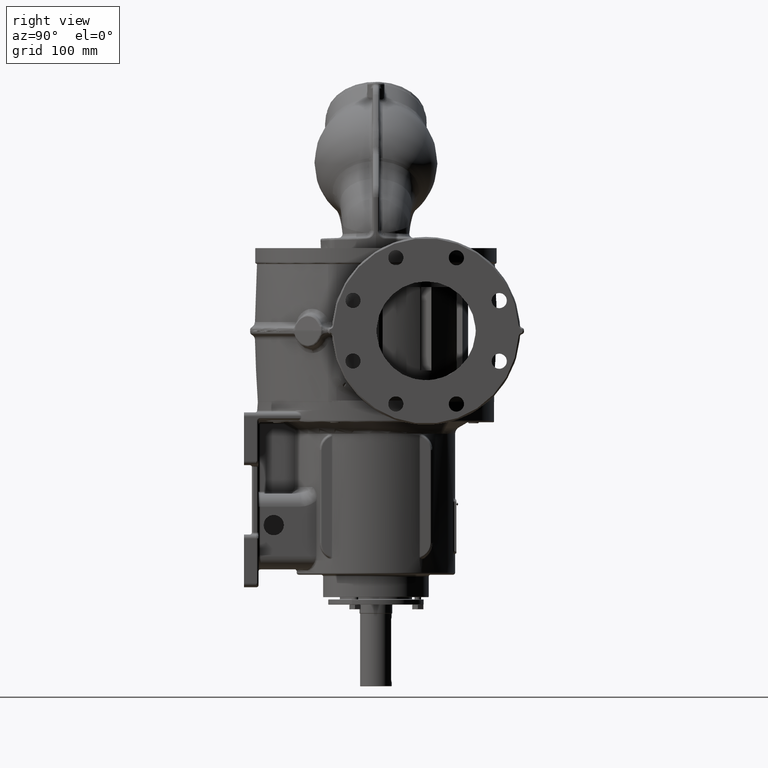
[diagram: clean part render]
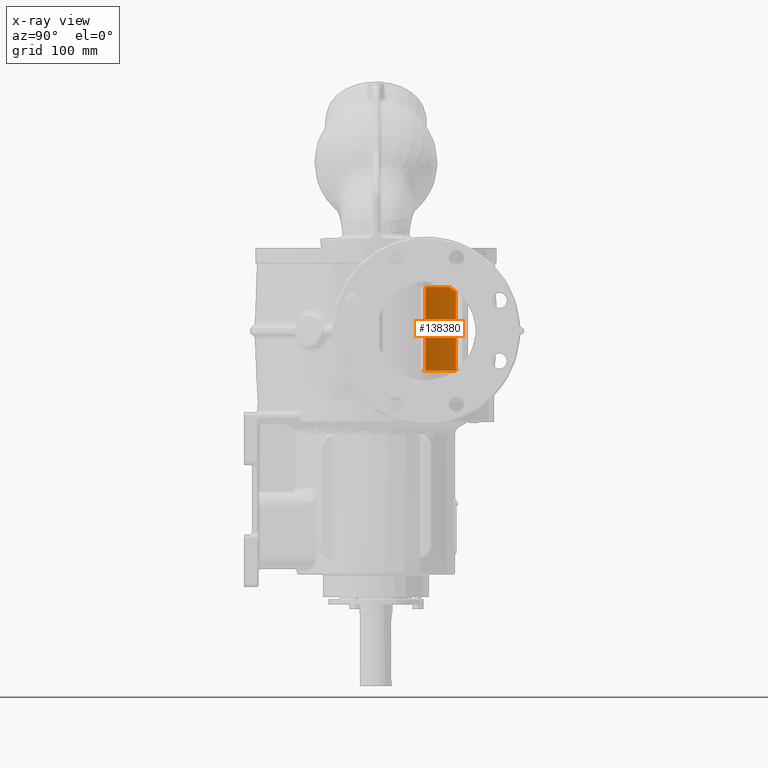
[diagram: x-ray — body ghosted, one internal face saturated and labeled with its STEP entity id]
A machine part, right view, then the same camera in x-ray: the body is ghosted and one INTERNAL B-rep face — a face not visible from any outside direction — is saturated and labeled: STEP entity #138380.
In plain terms, the highlighted cylindrical surface (partial cylindrical patch) has radius 175.5 mm, axis along (0, 0, 1).
Its self-contained STEP definition (entity closure, byte-faithful):
#50394=CARTESIAN_POINT('',(2.341162855619E2,6.974274386931E1,5.75E1));
#50395=DIRECTION('',(0.E0,0.E0,-1.E0));
#50396=DIRECTION('',(-9.997964868474E-1,2.017386645368E-2,0.E0));
#50397=AXIS2_PLACEMENT_3D('',#50394,#50395,#50396);
#50419=CARTESIAN_POINT('',(6.657694933999E1,1.22E2,5.75E1));
#50420=CARTESIAN_POINT('',(6.664135081451E1,1.222064742983E2,5.765485572375E1));
#50421=CARTESIAN_POINT('',(6.677053842808E1,1.226179707481E2,5.796680842306E1));
#50422=CARTESIAN_POINT('',(6.696543771716E1,1.232308838119E2,5.844150461495E1));
#50423=CARTESIAN_POINT('',(6.709606348239E1,1.236365333446E2,5.876244208069E1));
#50424=CARTESIAN_POINT('',(6.716154333828E1,1.238386221692E2,5.892403672756E1));
#50426=CARTESIAN_POINT('',(6.663468786817E1,1.221847540705E2,1.773609889626E2));
#50427=CARTESIAN_POINT('',(6.651843108680E1,1.218134702198E2,1.776412444308E2));
#50428=CARTESIAN_POINT('',(6.628725982487E1,1.210665311974E2,1.781942123703E2));
#50429=CARTESIAN_POINT('',(6.594473421355E1,1.199328936934E2,1.790013085655E2));
#50430=CARTESIAN_POINT('',(6.560686972296E1,1.187866717686E2,1.797857594084E2));
#50431=CARTESIAN_POINT('',(6.527409646697E1,1.176285755199E2,1.805472651210E2));
#50432=CARTESIAN_POINT('',(6.494685770783E1,1.164594398912E2,1.812854882207E2));
#50433=CARTESIAN_POINT('',(6.462540380730E1,1.152794641462E2,1.820005082063E2));
#50434=CARTESIAN_POINT('',(6.431017031425E1,1.140895758805E2,1.826919716175E2));
#50435=CARTESIAN_POINT('',(6.400142331270E1,1.128901396948E2,1.833598840820E2));
#50436=CARTESIAN_POINT('',(6.380018913847E1,1.120848093020E2,1.837892441479E2));
#50437=CARTESIAN_POINT('',(6.370073759935E1,1.116806862677E2,1.84E2));
#50439=CARTESIAN_POINT('',(2.341162855619E2,6.974274386931E1,1.84E2));
#50440=DIRECTION('',(0.E0,0.E0,1.E0));
#50441=DIRECTION('',(-9.710287633196E-1,2.389626347488E-1,0.E0));
#50442=AXIS2_PLACEMENT_3D('',#50439,#50440,#50441);
#50444=DIRECTION('',(0.E0,0.E0,1.E0));
#50445=VECTOR('',#50444,1.26E2);
#50446=CARTESIAN_POINT('',(5.871679786463E1,7.568157502708E1,5.8E1));
#50447=LINE('',#50446,#50445);
#50448=CARTESIAN_POINT('',(2.341162855619E2,6.974274386931E1,5.8E1));
#50449=DIRECTION('',(0.E0,0.E0,1.E0));
#50450=DIRECTION('',(-9.994272803266E-1,3.383949377645E-2,0.E0));
#50451=AXIS2_PLACEMENT_3D('',#50448,#50449,#50450);
#50453=DIRECTION('',(-2.842170943040E-14,-6.536993168993E-13,1.E0));
#50454=VECTOR('',#50453,5.E-1);
#50455=CARTESIAN_POINT('',(5.865200212023E1,7.328325743193E1,5.75E1));
#50456=LINE('',#50455,#50454);
#50457=CARTESIAN_POINT('',(6.716154333828E1,1.238386221692E2,5.892403672756E1));
#50653=DIRECTION('',(-2.467319600968E-14,2.467319600968E-14,-1.E0));
#50654=VECTOR('',#50653,5.759632724364E-1);
#50655=CARTESIAN_POINT('',(6.716154333828E1,1.238386221692E2,5.95E1));
#50656=LINE('',#50655,#50654);
#50915=CARTESIAN_POINT('',(6.663468786817E1,1.221847540705E2,1.773609889626E2));
#50920=DIRECTION('',(0.E0,0.E0,1.E0));
#50921=VECTOR('',#50920,1.178609889626E2);
#50922=CARTESIAN_POINT('',(6.663468786817E1,1.221847540705E2,5.95E1));
#50923=LINE('',#50922,#50921);
#50924=CARTESIAN_POINT('',(2.341162855619E2,6.974274386931E1,5.95E1));
#50925=DIRECTION('',(0.E0,0.E0,1.E0));
#50926=DIRECTION('',(-9.513090724995E-1,3.082386227912E-1,0.E0));
#50927=AXIS2_PLACEMENT_3D('',#50924,#50925,#50926);
#66542=CARTESIAN_POINT('',(5.871679786463E1,7.568157502708E1,1.84E2));
#66544=VERTEX_POINT('',#66542);
#66558=CARTESIAN_POINT('',(5.871679786463E1,7.568157502708E1,5.8E1));
#66560=VERTEX_POINT('',#66558);
#66613=CARTESIAN_POINT('',(5.865200212023E1,7.328325743193E1,5.75E1));
#66615=VERTEX_POINT('',#66613);
#66620=CARTESIAN_POINT('',(6.716154333828E1,1.238386221692E2,5.95E1));
#66621=CARTESIAN_POINT('',(6.663468786817E1,1.221847540705E2,5.95E1));
#66622=VERTEX_POINT('',#66620);
#66623=VERTEX_POINT('',#66621);
#66683=CARTESIAN_POINT('',(5.865200212023E1,7.328325743193E1,5.8E1));
#66685=VERTEX_POINT('',#66683);
#67933=VERTEX_POINT('',#50457);
#67941=CARTESIAN_POINT('',(6.370073759935E1,1.116806862677E2,1.84E2));
#67942=VERTEX_POINT('',#67941);
#67974=VERTEX_POINT('',#50915);
#67983=CARTESIAN_POINT('',(6.657694933999E1,1.22E2,5.75E1));
#67985=VERTEX_POINT('',#67983);
#138357=CARTESIAN_POINT('',(2.341162855619E2,6.974274386931E1,5.75E1));
#138358=DIRECTION('',(0.E0,0.E0,1.E0));
#138359=DIRECTION('',(9.898214418809E-1,-1.423148382733E-1,0.E0));
#138360=AXIS2_PLACEMENT_3D('',#138357,#138358,#138359);
#138361=CYLINDRICAL_SURFACE('',#138360,1.755E2);
#138362=ORIENTED_EDGE('',*,*,#137453,.T.);
#138364=ORIENTED_EDGE('',*,*,#138363,.F.);
#138366=ORIENTED_EDGE('',*,*,#138365,.T.);
#138368=ORIENTED_EDGE('',*,*,#138367,.T.);
#138369=ORIENTED_EDGE('',*,*,#137306,.T.);
#138371=ORIENTED_EDGE('',*,*,#138370,.T.);
#138373=ORIENTED_EDGE('',*,*,#138372,.F.);
#138374=ORIENTED_EDGE('',*,*,#137968,.T.);
#138376=ORIENTED_EDGE('',*,*,#138375,.F.);
#138377=ORIENTED_EDGE('',*,*,#138346,.T.);
#138378=EDGE_LOOP('',(#138362,#138364,#138366,#138368,#138369,#138371,#138373,
#138374,#138376,#138377));
#138379=FACE_OUTER_BOUND('',#138378,.F.);
#138380=ADVANCED_FACE('',(#138379),#138361,.T.);
#50398=CIRCLE('',#50397,1.755E2);
#50425=B_SPLINE_CURVE_WITH_KNOTS('',3,(#50419,#50420,#50421,#50422,#50423,
#50424),.UNSPECIFIED.,.F.,.F.,(4,1,1,4),(0.E0,3.333333333333E-1,
6.666666666667E-1,1.E0),.UNSPECIFIED.);
#50438=B_SPLINE_CURVE_WITH_KNOTS('',3,(#50426,#50427,#50428,#50429,#50430,
#50431,#50432,#50433,#50434,#50435,#50436,#50437),.UNSPECIFIED.,.F.,.F.,(4,1,1,
1,1,1,1,1,1,4),(0.E0,1.111111111111E-1,2.222222222222E-1,3.333333333333E-1,
4.444444444444E-1,5.555555555556E-1,6.666666666667E-1,7.777777777778E-1,
8.888888888889E-1,1.E0),.UNSPECIFIED.);
#50443=CIRCLE('',#50442,1.755E2);
#50452=CIRCLE('',#50451,1.755E2);
#50928=CIRCLE('',#50927,1.755E2);
#137306=EDGE_CURVE('',#67974,#67942,#50438,.T.);
#137453=EDGE_CURVE('',#67985,#67933,#50425,.T.);
#137968=EDGE_CURVE('',#66560,#66685,#50452,.T.);
#138346=EDGE_CURVE('',#66615,#67985,#50398,.T.);
#138363=EDGE_CURVE('',#66622,#67933,#50656,.T.);
#138365=EDGE_CURVE('',#66622,#66623,#50928,.T.);
#138367=EDGE_CURVE('',#66623,#67974,#50923,.T.);
#138370=EDGE_CURVE('',#67942,#66544,#50443,.T.);
#138372=EDGE_CURVE('',#66560,#66544,#50447,.T.);
#138375=EDGE_CURVE('',#66615,#66685,#50456,.T.);